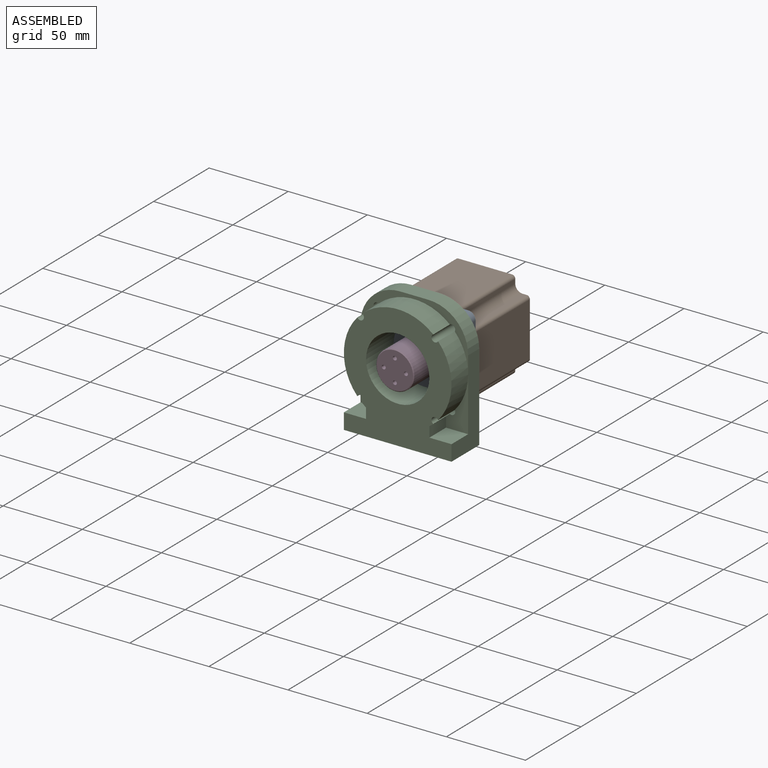
[diagram: assembled view]
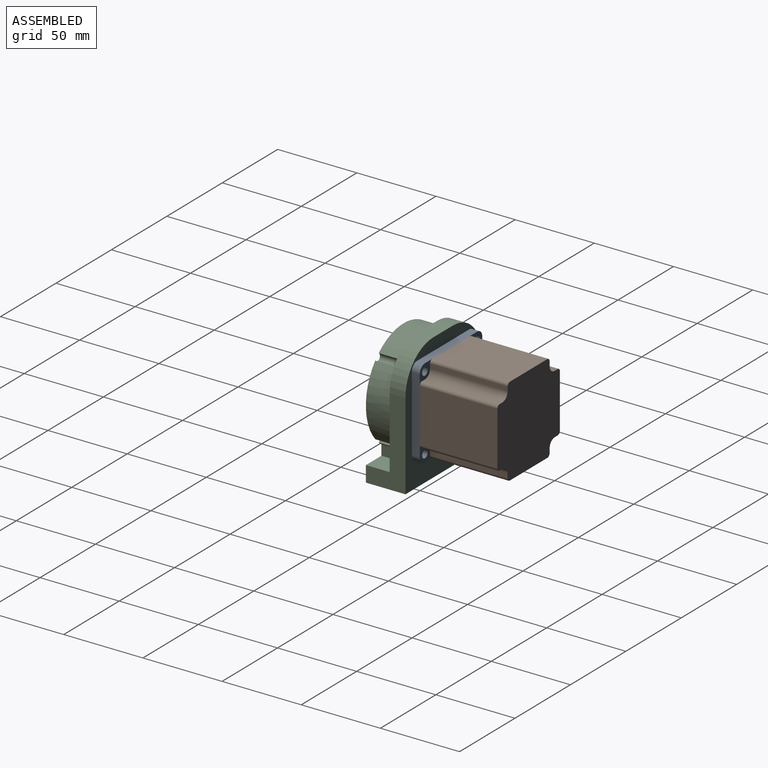
[diagram: assembled view, second angle]
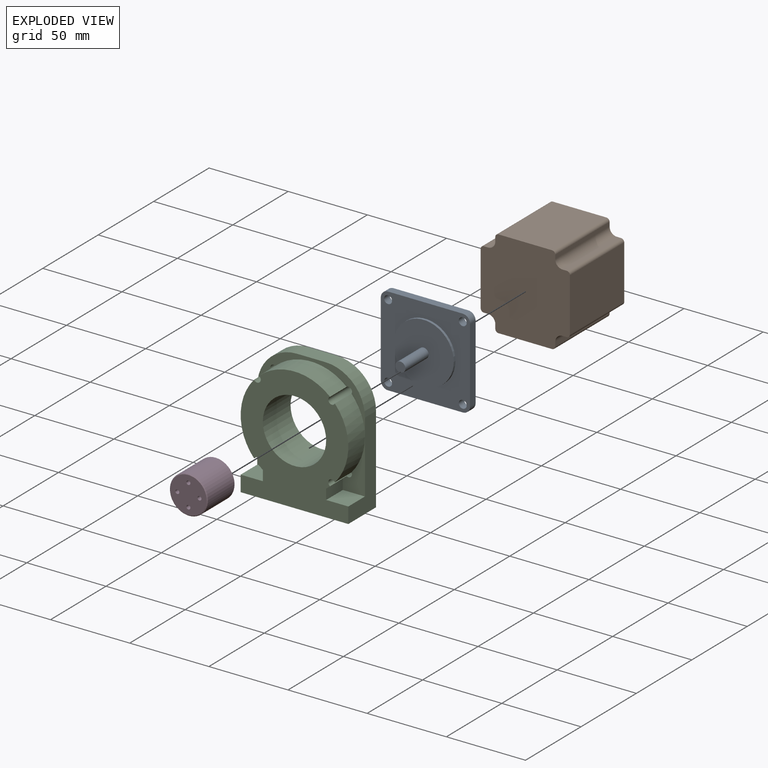
[diagram: exploded view]
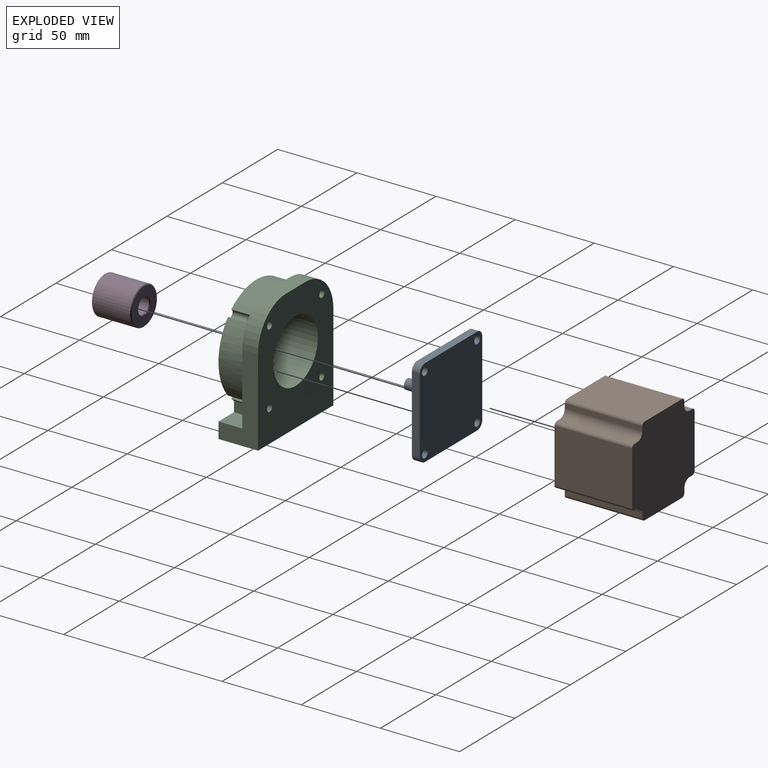
[diagram: exploded view, second angle]
ASSEMBLY  parts=4 mates=5
PART A: 18 faces, bbox 56.4x56.4x27.6 mm
  f0: plane 38x38mm, normal (0,0,1), area 1102.4mm2, adj f15,f16
  f1: plane 56.4x56.4mm, normal (0,0,1), area 1949.9mm2, adj f2,f3,f4,f5,f6,f7,f8,f9
  f2: cylinder r=4.63mm len=5mm, axis (0,0,1), area 36.4mm2, adj f1,f3,f9,f10
  f3: plane 47.14x5mm, normal (1,0,0), area 235.7mm2, adj f1,f2,f4,f10
  f4: cylinder r=4.63mm len=5mm, axis (0,0,1), area 36.4mm2, adj f1,f3,f5,f10
  f5: plane 47.14x5mm, normal (0,-1,0), area 235.7mm2, adj f1,f4,f6,f10
  f6: cylinder r=4.63mm len=5mm, axis (0,0,1), area 36.4mm2, adj f1,f5,f7,f10
  f7: plane 47.14x5mm, normal (-1,0,0), area 235.7mm2, adj f1,f6,f8,f10
  f8: cylinder r=4.63mm len=5mm, axis (0,0,1), area 36.4mm2, adj f1,f7,f9,f10
  f9: plane 47.14x5mm, normal (0,1,0), area 235.7mm2, adj f1,f2,f8,f10
  f10: plane 56.4x56.4mm, normal (0,0,-1), area 3084mm2, adj f2,f3,f4,f5,f6,f7,f8,f9
  f11: cylinder r=2.5mm len=5mm, axis (0,0,1), area 78.5mm2, adj f1,f10
  f12: cylinder r=2.5mm len=5mm, axis (0,0,1), area 78.5mm2, adj f1,f10
  f13: cylinder r=2.5mm len=5mm, axis (0,0,1), area 78.5mm2, adj f1,f10
  f14: cylinder r=2.5mm len=5mm, axis (0,0,1), area 78.5mm2, adj f1,f10
  f15: cylinder r=19mm len=38mm, axis (0,0,-1), area 191mm2, adj f0,f1
  f16: cylinder r=3.17mm len=21mm, axis (0,0,-1), area 418.9mm2, adj f0,f17
  f17: plane 6.35x6.35mm, normal (0,0,1), area 31.7mm2, adj f16
PART B: 26 faces, bbox 56.4x56.4x49 mm
  f0: cylinder r=2mm len=49mm, axis (0,0,1), area 153.9mm2, adj f1,f23,f24,f25
  f1: plane 49x2.63mm, normal (0,-1,0), area 128.9mm2, adj f0,f2,f24,f25
  f2: cylinder r=4.63mm len=49mm, axis (0,0,1), area 356.4mm2, adj f1,f3,f24,f25
  f3: plane 49x2.63mm, normal (1,0,0), area 128.9mm2, adj f2,f4,f24,f25
  f4: cylinder r=2mm len=49mm, axis (0,0,1), area 153.9mm2, adj f3,f5,f24,f25
  f5: plane 49x33.88mm, normal (0,-1,0), area 1660.1mm2, adj f4,f6,f24,f25
  f6: cylinder r=2mm len=49mm, axis (0,0,1), area 153.9mm2, adj f5,f7,f24,f25
  f7: plane 49x2.63mm, normal (-1,0,0), area 128.9mm2, adj f6,f8,f24,f25
  f8: cylinder r=4.63mm len=49mm, axis (0,0,1), area 356.4mm2, adj f7,f9,f24,f25
  f9: plane 49x2.63mm, normal (0,-1,0), area 128.9mm2, adj f8,f10,f24,f25
  f10: cylinder r=2mm len=49mm, axis (0,0,1), area 153.9mm2, adj f9,f11,f24,f25
  f11: plane 49x33.88mm, normal (-1,0,0), area 1660.1mm2, adj f10,f12,f24,f25
  f12: cylinder r=2mm len=49mm, axis (0,0,1), area 153.9mm2, adj f11,f13,f24,f25
  f13: plane 49x2.63mm, normal (0,1,0), area 128.9mm2, adj f12,f14,f24,f25
  f14: cylinder r=4.63mm len=49mm, axis (0,0,1), area 356.4mm2, adj f13,f15,f24,f25
  f15: plane 49x2.63mm, normal (-1,0,0), area 128.9mm2, adj f14,f16,f24,f25
  f16: cylinder r=2mm len=49mm, axis (0,0,1), area 153.9mm2, adj f15,f17,f24,f25
  f17: plane 49x33.88mm, normal (0,1,0), area 1660.1mm2, adj f16,f18,f24,f25
  f18: cylinder r=2mm len=49mm, axis (0,0,1), area 153.9mm2, adj f17,f19,f24,f25
  f19: plane 49x2.63mm, normal (1,0,0), area 128.9mm2, adj f18,f20,f24,f25
  f20: cylinder r=4.63mm len=49mm, axis (0,0,1), area 356.4mm2, adj f19,f21,f24,f25
  f21: plane 49x2.63mm, normal (0,1,0), area 128.9mm2, adj f20,f22,f24,f25
  f22: cylinder r=2mm len=49mm, axis (0,0,1), area 153.9mm2, adj f21,f23,f24,f25
  f23: plane 49x33.88mm, normal (1,0,0), area 1660.1mm2, adj f0,f22,f24,f25
  f24: plane 56.4x56.4mm, normal (0,0,-1), area 2849.5mm2, adj f0,f1,f2,f3,f4,f5,f6,f7
  f25: plane 56.4x56.4mm, normal (0,0,1), area 2849.5mm2, adj f0,f1,f2,f3,f4,f5,f6,f7
PART C: 37 faces, bbox 68x80x25 mm
  f0: cylinder r=2.25mm len=25mm, axis (0,0,-1), area 265.5mm2, adj f9,f10,f25,f35,f36
  f1: cylinder r=2.25mm len=25mm, axis (0,0,-1), area 265.5mm2, adj f9,f10,f30,f35,f36
  f2: plane 55x25mm, normal (-1,0,0), area 700mm2, adj f5,f9,f10,f12,f28,f29,f36
  f3: cylinder r=2.25mm len=25mm, axis (0,0,-1), area 265.5mm2, adj f9,f10,f30,f33,f34
  f4: cylinder r=2.25mm len=25mm, axis (0,0,-1), area 265.5mm2, adj f9,f10,f25,f26,f29
  f5: plane 68x25mm, normal (0,-1,0), area 1642.3mm2, adj f2,f6,f9,f10,f13,f15,f17,f19
  f6: plane 55x25mm, normal (1,0,0), area 700mm2, adj f5,f9,f10,f11,f31,f34,f36
  f7: cylinder r=20mm len=40mm, axis (0,0,-1), area 3141.6mm2, adj f9,f10
  f8: plane 18x10mm, normal (0,1,0), area 180mm2, adj f9,f11,f12,f36
  f9: plane 80x68mm, normal (0,0,1), area 3851.5mm2, adj f0,f1,f2,f3,f4,f5,f6,f7
  f10: plane 78x68mm, normal (0,0,-1), area 3094.9mm2, adj f0,f1,f2,f3,f4,f5,f6,f7
  f11: cylinder r=25mm len=25mm, axis (0,0,1), area 392.7mm2, adj f6,f8,f9,f36
  f12: cylinder r=25mm len=25mm, axis (0,0,-1), area 392.7mm2, adj f2,f8,f9,f36
  f13: cylinder r=1.75mm len=20mm, axis (0,-1,0), area 219.9mm2, adj f5,f14
  f14: plane 3.5x3.5mm, normal (0,-1,0), area 9.6mm2, adj f13
  f15: cylinder r=1.75mm len=20mm, axis (0,-1,0), area 219.9mm2, adj f5,f16
  f16: plane 3.5x3.5mm, normal (0,-1,0), area 9.6mm2, adj f15
  f17: cylinder r=1.75mm len=20mm, axis (0,-1,0), area 219.9mm2, adj f5,f18
  f18: plane 3.5x3.5mm, normal (0,-1,0), area 9.6mm2, adj f17
  f19: cylinder r=1.75mm len=20mm, axis (0,-1,0), area 219.9mm2, adj f5,f20
  f20: plane 3.5x3.5mm, normal (0,-1,0), area 9.6mm2, adj f19
  f21: cylinder r=1.75mm len=20mm, axis (0,-1,0), area 219.9mm2, adj f5,f22
  f22: plane 3.5x3.5mm, normal (0,-1,0), area 9.6mm2, adj f21
  f23: cylinder r=1.75mm len=20mm, axis (0,-1,0), area 219.9mm2, adj f5,f24
  f24: plane 3.5x3.5mm, normal (0,-1,0), area 9.6mm2, adj f23
  f25: cylinder r=34mm len=44.92mm, axis (0,0,-1), area 736mm2, adj f0,f4,f10,f29,f36
  f26: cylinder r=34mm len=15mm, axis (0,0,-1), area 47.3mm2, adj f4,f10,f27,f29
  f27: plane 15x6.5mm, normal (-1,0,0), area 97.6mm2, adj f10,f26,f28,f29
  f28: plane 15x14mm, normal (0,1,0), area 210mm2, adj f2,f10,f27,f29
  f29: plane 34x14mm, normal (0,0,-1), area 201.4mm2, adj f2,f4,f25,f26,f27,f28
  f30: cylinder r=34mm len=44.92mm, axis (0,0,-1), area 736mm2, adj f1,f3,f10,f34,f36
  f31: plane 15x14mm, normal (0,1,0), area 210mm2, adj f6,f10,f32,f34
  f32: plane 15x6.5mm, normal (1,0,0), area 97.6mm2, adj f10,f31,f33,f34
  f33: cylinder r=34mm len=15mm, axis (0,0,-1), area 47.3mm2, adj f3,f10,f32,f34
  f34: plane 34x14mm, normal (0,0,-1), area 201.4mm2, adj f3,f6,f30,f31,f32,f33
  f35: cylinder r=34mm len=44.92mm, axis (0,0,-1), area 736mm2, adj f0,f1,f10,f36
  f36: plane 68x36mm, normal (0,0,-1), area 353.7mm2, adj f0,f1,f2,f6,f8,f11,f12,f25
PART D: 25 faces, bbox 24x24x25 mm
  f0: cylinder r=1.25mm len=6.95mm, axis (0,1,0), area 50.3mm2, adj f1,f2,f22,f23,f24
  f1: cone r=0mm half-angle=59deg, axis (0,0,1), area 0mm2, adj f0,f23
  f2: plane 19x4.15mm, normal (0,1,0), area 69mm2, adj f0,f3,f17,f20,f21
  f3: plane 4.36x0.5mm, normal (0,0.71,-0.71), area 3mm2, adj f2,f4,f16
  f4: plane 23x23mm, normal (0,0,-1), area 321.8mm2, adj f3,f5,f16
  f5: cone r=12mm half-angle=45deg, axis (0,0,1), area 52.2mm2, adj f4,f6
  f6: cylinder r=12mm len=24mm, axis (0,0,-1), area 1789.4mm2, adj f5,f7,f8,f24
  f7: bspline ~3.65x3.5mm, area 7mm2, adj f6,f21
  f8: cone r=11.5mm half-angle=45deg, axis (0,0,-1), area 52.2mm2, adj f6,f9
  f9: plane 23x23mm, normal (0,0,1), area 395.8mm2, adj f8,f10,f12,f14,f23
  f10: cylinder r=1.25mm len=10mm, axis (0,0,1), area 78.5mm2, adj f9,f11
  f11: cone r=0mm half-angle=59deg, axis (0,0,1), area 5.7mm2, adj f10
  f12: cylinder r=1.25mm len=10mm, axis (0,0,1), area 78.5mm2, adj f9,f13
  f13: cone r=0mm half-angle=59deg, axis (0,0,1), area 5.7mm2, adj f12
  f14: cylinder r=1.25mm len=10mm, axis (0,0,1), area 78.5mm2, adj f9,f15
  f15: cone r=0mm half-angle=59deg, axis (0,0,1), area 5.7mm2, adj f14
  f16: cone r=5.5mm half-angle=45deg, axis (0,0,-1), area 20.2mm2, adj f3,f4,f20
  f17: plane 4.15x0.5mm, normal (0,0.71,-0.71), area 2.9mm2, adj f2,f18,f19
  f18: plane 9x8.55mm, normal (0,0,-1), area 62.4mm2, adj f17,f19
  f19: cone r=5mm half-angle=45deg, axis (0,0,-1), area 18.2mm2, adj f17,f18,f20
  f20: cylinder r=5mm len=19mm, axis (0,0,-1), area 515.7mm2, adj f2,f16,f19
  f21: cylinder r=1.25mm len=6.95mm, axis (0,1,0), area 54.6mm2, adj f2,f7
  f22: cone r=0mm half-angle=59deg, axis (0,0,1), area 0mm2, adj f0,f23
  f23: cylinder r=1.25mm len=10mm, axis (0,0,1), area 78.1mm2, adj f0,f1,f9,f22
  f24: bspline ~3.65x3.5mm, area 7mm2, adj f0,f6
PLACE A rot(axis=(1,0,0),90deg) t=(-22.48,-1.14,18.02)mm
PLACE B rot(axis=(1,0,0),90deg) t=(-22.48,-1.14,18.02)mm
PLACE C rot(axis=(0,-0.71,-0.71),180deg) t=(-22.48,-26.14,-25.98)mm
PLACE D rot(axis=(1,0,0),90deg) t=(-22.48,-3.74,18.02)mm
MATE parallel C.f7 <-> A.f15  axis (0,1,0) through (-22.48,-1.14,18.02)mm
MATE cylindrical A.f15 <-> D.f16  axis (0,-1,0) through (-22.48,-23.74,18.02)mm
MATE parallel A.f15 <-> C.f7  axis (0,-1,0) through (-22.48,-1.14,18.02)mm
MATE planar A.f15 <-> B.f25  axis (0,1,0) through (-22.48,3.86,18.02)mm
MATE planar A.f15 <-> C.f7  axis (0,-1,0) through (-22.48,-1.14,18.02)mm
